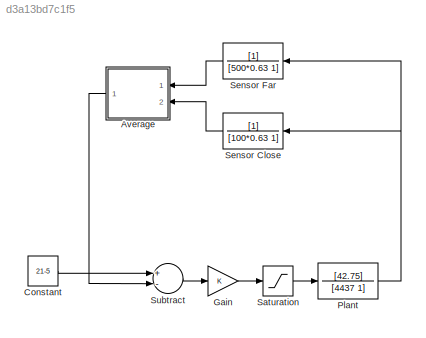
MODEL slx_d3a13bd7c1f5
KIND model
CONFIG AbsTol = auto
CONFIG EnableMultiTasking = off
CONFIG FixedStep = 1
CONFIG MaxStep = 1
CONFIG MinStep = auto
CONFIG RelTol = 1e-3
CONFIG SampleTimeConstraint = Unconstrained
CONFIG Solver = VariableStepAuto
CONFIG SolverName = VariableStepAuto
CONFIG StartTime = 0.0
CONFIG StopTime = 4000
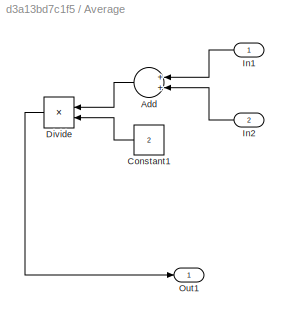
BLOCK [SubSystem] Average
  Ports = [2, 1]
  RequestExecContextInheritance = off
BLOCK [Sum] Average/Add
  InputSameDT = off
  OutDataTypeStr = Inherit: Inherit via internal rule
  Ports = [2, 1]
  SaturateOnIntegerOverflow = off
BLOCK [Constant] Average/Constant1
  Value = 2
BLOCK [Product] Average/Divide
  InputSameDT = off
  Inputs = */
  OutDataTypeStr = Inherit: Inherit via internal rule
  Ports = [2, 1]
  RndMeth = Floor
  SaturateOnIntegerOverflow = off
BLOCK [Inport] Average/In1
  IconDisplay = Port number
BLOCK [Inport] Average/In2
  IconDisplay = Port number
  Port = 2
BLOCK [Outport] Average/Out1
  IconDisplay = Port number
BLOCK [Constant] Constant
  Value = 21-5
BLOCK [Gain] Gain
  OutDataTypeStr = Inherit: Inherit via internal rule
  ParamDataTypeStr = Inherit: Inherit via internal rule
  SaturateOnIntegerOverflow = off
BLOCK [TransferFcn] Plant
  Denominator = [4437 1]
  Numerator = [42.75]
BLOCK [Saturate] Saturation
  InputPortMap = u0
  LowerLimit = 0
  Ports = [1, 1]
  UpperLimit = 1
BLOCK [TransferFcn] Sensor Close
  Denominator = [100*0.63 1]
BLOCK [TransferFcn] Sensor Far
  Denominator = [500*0.63 1]
BLOCK [Sum] Subtract
  InputSameDT = off
  Inputs = +-
  OutDataTypeStr = Inherit: Inherit via internal rule
  Ports = [2, 1]
  SaturateOnIntegerOverflow = off
LINE Average/Add:1 -> Average/Divide:1
LINE Average/Constant1:1 -> Average/Divide:2
LINE Average/Divide:1 -> Average/Out1:1
LINE Average/In1:1 -> Average/Add:1
LINE Average/In2:1 -> Average/Add:2
LINE Average:1 -> Subtract:2
LINE Constant:1 -> Subtract:1
LINE Gain:1 -> Saturation:1
NET Plant:1 -> Sensor Close:1, Sensor Far:1
LINE Saturation:1 -> Plant:1
LINE Sensor Close:1 -> Average:2
LINE Sensor Far:1 -> Average:1
LINE Subtract:1 -> Gain:1
note: NET lines group one-source signal fan-out (src -> all destinations, sorted); 1:1 wires keep LINE
